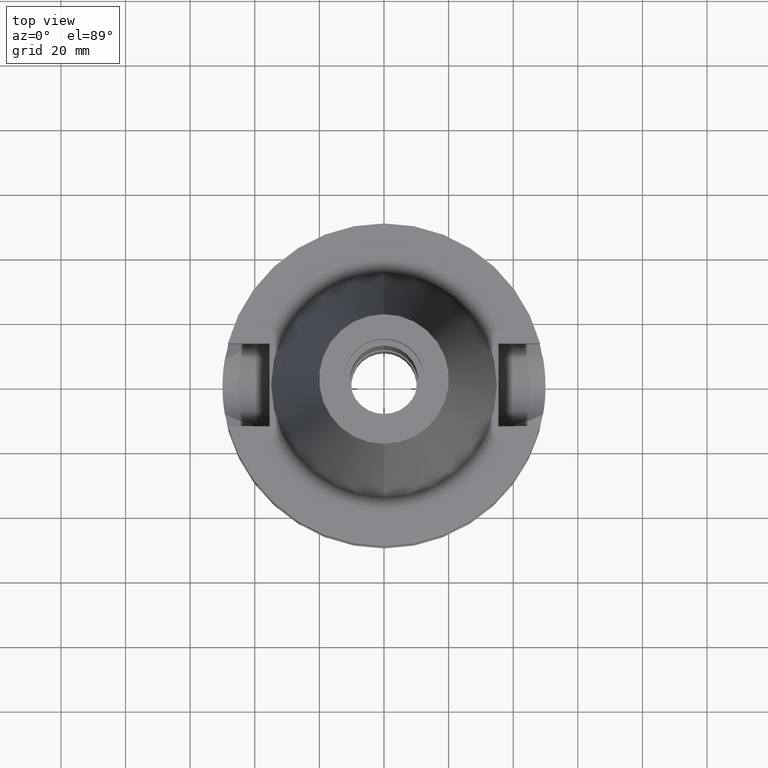
[diagram: clean part render]
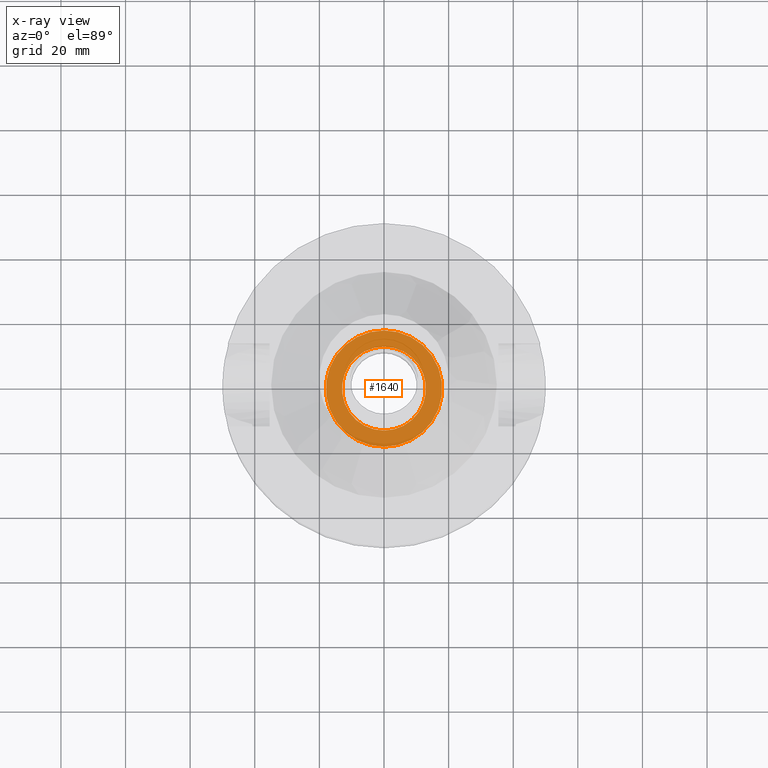
[diagram: x-ray — body ghosted, one internal face saturated and labeled with its STEP entity id]
A machine part, top view, then the same camera in x-ray: the body is ghosted and one INTERNAL B-rep face — a face not visible from any outside direction — is saturated and labeled: STEP entity #1640.
In plain terms, the highlighted planar face has unit normal (0, 0, -1).
Its self-contained STEP definition (entity closure, byte-faithful):
#197 = DIRECTION ( 'NONE',  ( 0.0000000000000000000, 0.0000000000000000000, -1.000000000000000000 ) ) ;
#258 = EDGE_CURVE ( 'NONE', #3486, #2340, #448, .T. ) ;
#448 = CIRCLE ( 'NONE', #450, 18.00000000000000000 ) ;
#450 = AXIS2_PLACEMENT_3D ( 'NONE', #2081, #2006, #3134 ) ;
#489 = CARTESIAN_POINT ( 'NONE',  ( 0.0000000000000000000, 13.00000000000000000, -10.80000000000000071 ) ) ;
#510 = CIRCLE ( 'NONE', #1669, 13.00000000000000000 ) ;
#622 = EDGE_LOOP ( 'NONE', ( #1106, #2770 ) ) ;
#649 = CARTESIAN_POINT ( 'NONE',  ( 0.0000000000000000000, 0.0000000000000000000, -10.80000000000000071 ) ) ;
#690 = DIRECTION ( 'NONE',  ( 0.0000000000000000000, 0.0000000000000000000, -1.000000000000000000 ) ) ;
#714 = EDGE_CURVE ( 'NONE', #3293, #2491, #510, .T. ) ;
#926 = PLANE ( 'NONE',  #1084 ) ;
#1021 = ORIENTED_EDGE ( 'NONE', *, *, #2906, .F. ) ;
#1023 = DIRECTION ( 'NONE',  ( 0.0000000000000000000, 1.000000000000000000, 0.0000000000000000000 ) ) ;
#1084 = AXIS2_PLACEMENT_3D ( 'NONE', #649, #690, #3269 ) ;
#1106 = ORIENTED_EDGE ( 'NONE', *, *, #3242, .F. ) ;
#1109 = CARTESIAN_POINT ( 'NONE',  ( 0.0000000000000000000, 18.00000000000000000, -10.80000000000000071 ) ) ;
#1327 = AXIS2_PLACEMENT_3D ( 'NONE', #3566, #197, #2673 ) ;
#1343 = CARTESIAN_POINT ( 'NONE',  ( 0.0000000000000000000, -18.00000000000000000, -10.80000000000000071 ) ) ;
#1598 = CARTESIAN_POINT ( 'NONE',  ( 0.0000000000000000000, 0.0000000000000000000, -10.80000000000000071 ) ) ;
#1636 = ORIENTED_EDGE ( 'NONE', *, *, #258, .F. ) ;
#1640 = ADVANCED_FACE ( 'NONE', ( #2598, #3447 ), #926, .F. ) ;
#1669 = AXIS2_PLACEMENT_3D ( 'NONE', #2810, #3359, #2478 ) ;
#1741 = CIRCLE ( 'NONE', #1327, 18.00000000000000000 ) ;
#2006 = DIRECTION ( 'NONE',  ( 0.0000000000000000000, 0.0000000000000000000, -1.000000000000000000 ) ) ;
#2081 = CARTESIAN_POINT ( 'NONE',  ( 0.0000000000000000000, 0.0000000000000000000, -10.80000000000000071 ) ) ;
#2089 = AXIS2_PLACEMENT_3D ( 'NONE', #1598, #2095, #1023 ) ;
#2095 = DIRECTION ( 'NONE',  ( 0.0000000000000000000, 0.0000000000000000000, 1.000000000000000000 ) ) ;
#2132 = EDGE_LOOP ( 'NONE', ( #1636, #1021 ) ) ;
#2340 = VERTEX_POINT ( 'NONE', #1343 ) ;
#2478 = DIRECTION ( 'NONE',  ( 0.0000000000000000000, -1.000000000000000000, 0.0000000000000000000 ) ) ;
#2491 = VERTEX_POINT ( 'NONE', #489 ) ;
#2559 = CIRCLE ( 'NONE', #2089, 13.00000000000000000 ) ;
#2598 = FACE_OUTER_BOUND ( 'NONE', #2132, .T. ) ;
#2673 = DIRECTION ( 'NONE',  ( 0.0000000000000000000, -1.000000000000000000, 0.0000000000000000000 ) ) ;
#2770 = ORIENTED_EDGE ( 'NONE', *, *, #714, .F. ) ;
#2810 = CARTESIAN_POINT ( 'NONE',  ( 0.0000000000000000000, 0.0000000000000000000, -10.80000000000000071 ) ) ;
#2906 = EDGE_CURVE ( 'NONE', #2340, #3486, #1741, .T. ) ;
#3134 = DIRECTION ( 'NONE',  ( 0.0000000000000000000, 1.000000000000000000, 0.0000000000000000000 ) ) ;
#3242 = EDGE_CURVE ( 'NONE', #2491, #3293, #2559, .T. ) ;
#3269 = DIRECTION ( 'NONE',  ( 0.0000000000000000000, -1.000000000000000000, 0.0000000000000000000 ) ) ;
#3293 = VERTEX_POINT ( 'NONE', #3542 ) ;
#3359 = DIRECTION ( 'NONE',  ( 0.0000000000000000000, 0.0000000000000000000, 1.000000000000000000 ) ) ;
#3447 = FACE_BOUND ( 'NONE', #622, .T. ) ;
#3486 = VERTEX_POINT ( 'NONE', #1109 ) ;
#3542 = CARTESIAN_POINT ( 'NONE',  ( 0.0000000000000000000, -13.00000000000000000, -10.80000000000000071 ) ) ;
#3566 = CARTESIAN_POINT ( 'NONE',  ( 0.0000000000000000000, 0.0000000000000000000, -10.80000000000000071 ) ) ;